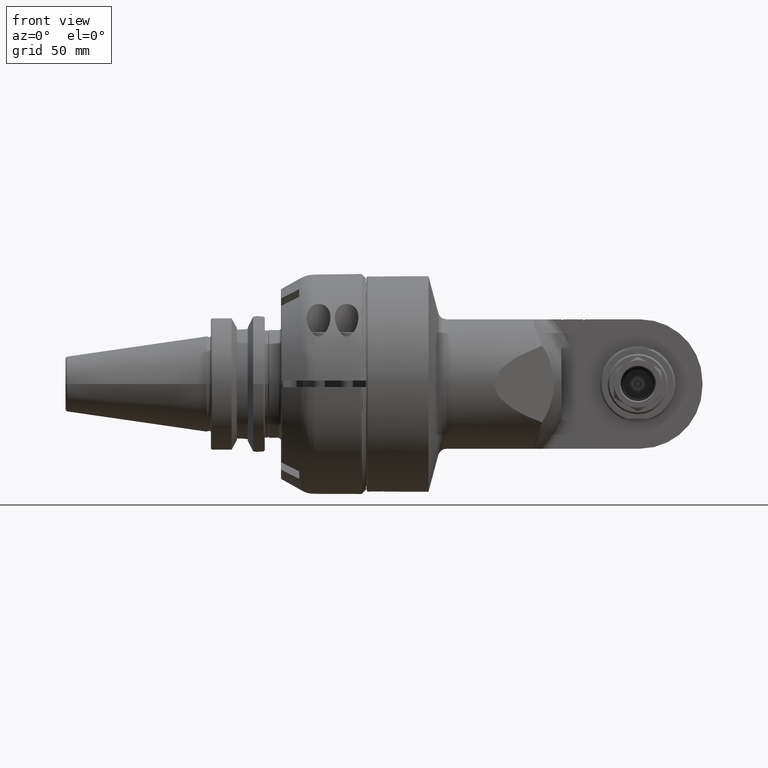
[diagram: clean part render]
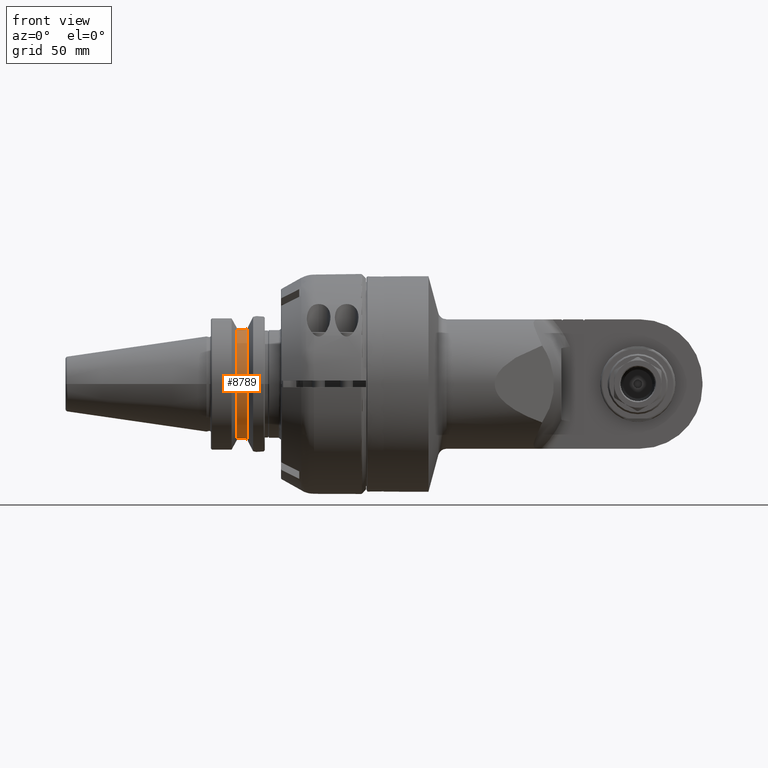
[diagram: same view with one face highlighted and labeled with its STEP entity id]
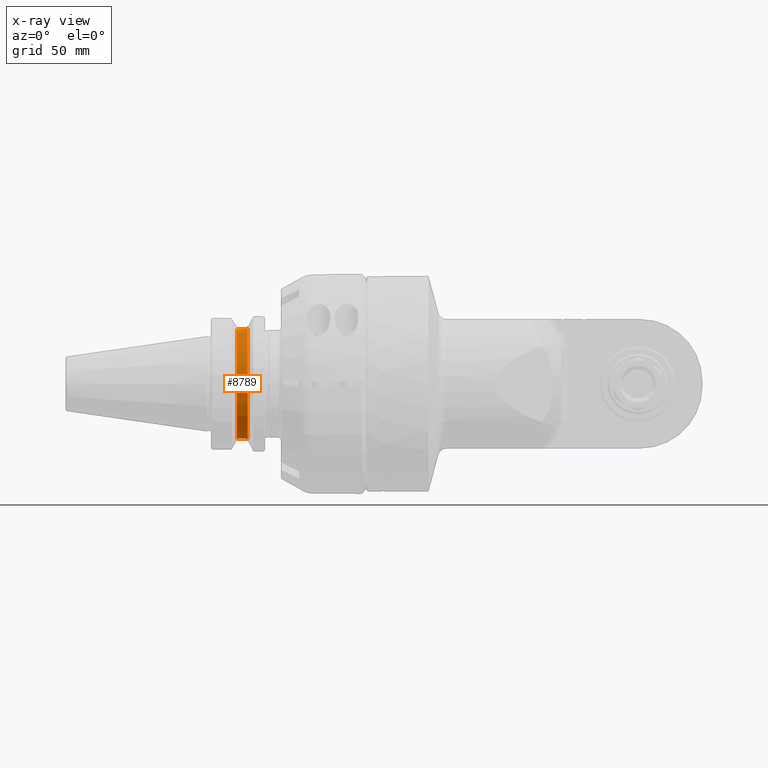
[diagram: x-ray of the same camera — body ghosted, the highlighted face saturated]
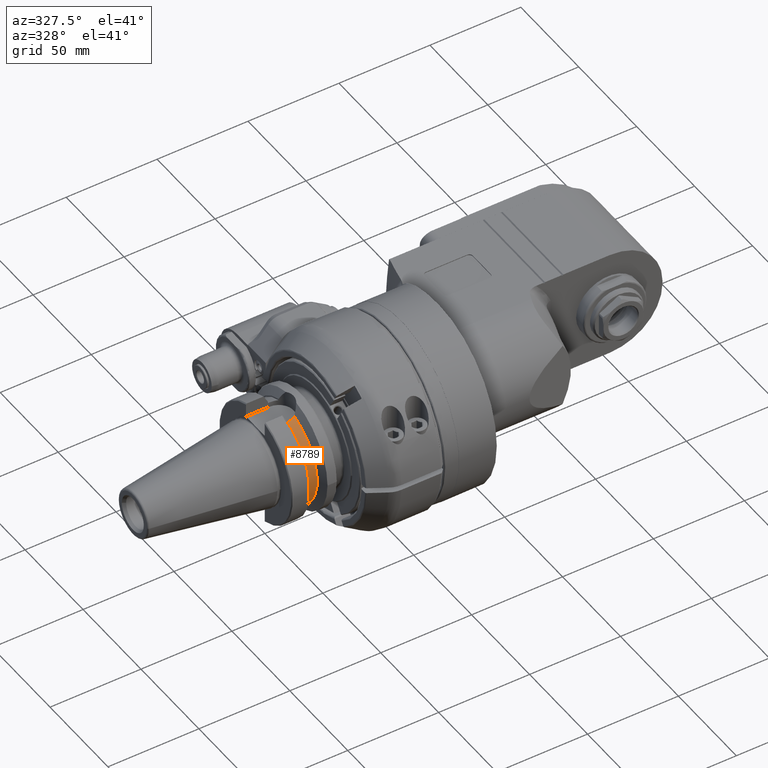
[diagram: same view with one face highlighted and labeled with its STEP entity id]
A machine part, front view. The second image highlights one B-rep face of the part: STEP entity #8789.
The next image is the same camera in x-ray: the body ghosted, the highlighted face saturated — about 0% of this face is hidden behind the body in this view.
A second angle (auxiliary view) of the same face is appended — the face is thin or edge-on in the first view.
In plain terms, the highlighted cylindrical surface (partial cylindrical patch) has radius 26.5 mm, axis along (1, 0, 0).
Its self-contained STEP definition (entity closure, byte-faithful):
#205=B_SPLINE_CURVE_WITH_KNOTS('',3,(#17281,#17282,#17283,#17284,#17285,
#17286,#17287,#17288,#17289,#17290,#17291,#17292,#17293,#17294,#17295,#17296,
#17297,#17298,#17299,#17300,#17301,#17302,#17303,#17304,#17305,#17306,#17307,
#17308,#17309,#17310,#17311,#17312,#17313,#17314,#17315,#17316,#17317,#17318,
#17319,#17320,#17321,#17322,#17323),.UNSPECIFIED.,.F.,.F.,(4,3,3,3,3,3,
3,3,3,3,3,3,3,3,4),(0.,0.0939692183446307,0.1111111111111,0.204657012970322,
0.2222222222222,0.3333333333333,0.4444444444444,0.543887019856217,0.5555555555556,
0.6666666666667,0.7777777777778,0.872034390876875,0.8888888888889,0.980332805401737,
1.),.UNSPECIFIED.);
#209=B_SPLINE_CURVE_WITH_KNOTS('',3,(#17361,#17362,#17363,#17364,#17365,
#17366,#17367,#17368,#17369,#17370,#17371,#17372,#17373,#17374,#17375,#17376,
#17377,#17378,#17379,#17380,#17381,#17382,#17383,#17384,#17385,#17386,#17387,
#17388,#17389,#17390,#17391,#17392,#17393,#17394,#17395,#17396,#17397),
 .UNSPECIFIED.,.F.,.F.,(4,3,3,3,3,3,3,3,3,3,3,3,4),(0.,0.1111111111111,
0.211792966589819,0.2222222222222,0.3333333333333,0.4444444444444,0.543576379659597,
0.5555555555556,0.6666666666667,0.7777777777778,0.880078436823261,0.8888888888889,
1.),.UNSPECIFIED.);
#817=LINE('',#17399,#1408);
#818=LINE('',#17402,#1409);
#1408=VECTOR('',#12181,0.85);
#1409=VECTOR('',#12184,0.85);
#1627=CYLINDRICAL_SURFACE('',#9777,26.5);
#2181=FACE_OUTER_BOUND('',#2758,.T.);
#2758=EDGE_LOOP('',(#7631,#7632,#7633,#7634,#7635,#7636));
#3280=CIRCLE('',#9776,26.5);
#3281=CIRCLE('',#9778,26.5);
#4062=VERTEX_POINT('',#17278);
#4063=VERTEX_POINT('',#17280);
#4069=VERTEX_POINT('',#17356);
#4070=VERTEX_POINT('',#17360);
#4071=VERTEX_POINT('',#17398);
#4072=VERTEX_POINT('',#17400);
#5276=EDGE_CURVE('',#4063,#4062,#205,.T.);
#5285=EDGE_CURVE('',#4069,#4062,#3280,.T.);
#5286=EDGE_CURVE('',#4070,#4069,#209,.T.);
#5287=EDGE_CURVE('',#4070,#4071,#817,.T.);
#5288=EDGE_CURVE('',#4072,#4071,#3281,.T.);
#5289=EDGE_CURVE('',#4072,#4063,#818,.T.);
#7631=ORIENTED_EDGE('',*,*,#5276,.T.);
#7632=ORIENTED_EDGE('',*,*,#5285,.F.);
#7633=ORIENTED_EDGE('',*,*,#5286,.F.);
#7634=ORIENTED_EDGE('',*,*,#5287,.T.);
#7635=ORIENTED_EDGE('',*,*,#5288,.F.);
#7636=ORIENTED_EDGE('',*,*,#5289,.T.);
#8789=ADVANCED_FACE('',(#2181),#1627,.T.);
#9776=AXIS2_PLACEMENT_3D('',#17358,#12177,#12178);
#9777=AXIS2_PLACEMENT_3D('',#17359,#12179,#12180);
#9778=AXIS2_PLACEMENT_3D('',#17401,#12182,#12183);
#12177=DIRECTION('center_axis',(1.,0.,0.));
#12178=DIRECTION('ref_axis',(0.,-0.26029531110911,0.965529052392838));
#12179=DIRECTION('center_axis',(1.,0.,0.));
#12180=DIRECTION('ref_axis',(0.,-1.,-1.22464679914735E-16));
#12181=DIRECTION('',(-1.,0.,0.));
#12182=DIRECTION('center_axis',(-1.,0.,0.));
#12183=DIRECTION('ref_axis',(0.,-0.303773584916708,-0.952744251678724));
#12184=DIRECTION('',(1.,2.292775120088E-10,-1.096283848015E-10));
#17278=CARTESIAN_POINT('',(-180.9,-6.897825744392,-25.58651988841));
#17280=CARTESIAN_POINT('',(-185.05,-8.05,-25.24772266958));
#17281=CARTESIAN_POINT('Ctrl Pts',(-185.05,-8.05000000000001,-25.24772266958));
#17282=CARTESIAN_POINT('Ctrl Pts',(-184.915351686759,-8.05000000000001,
-25.24772266958));
#17283=CARTESIAN_POINT('Ctrl Pts',(-184.780768211916,-8.04662604490495,
-25.2487977124219));
#17284=CARTESIAN_POINT('Ctrl Pts',(-184.646117892593,-8.03986189205492,
-25.2509522452046));
#17285=CARTESIAN_POINT('Ctrl Pts',(-184.621554941284,-8.03862797327967,
-25.2513452757157));
#17286=CARTESIAN_POINT('Ctrl Pts',(-184.596989774174,-8.03728109885629,
-25.2517742285917));
#17287=CARTESIAN_POINT('Ctrl Pts',(-184.572421607817,-8.03582098352867,
-25.2522391308283));
#17288=CARTESIAN_POINT('Ctrl Pts',(-184.438349407607,-8.02785291331605,
-25.2547761726587));
#17289=CARTESIAN_POINT('Ctrl Pts',(-184.304187886551,-8.01650798209667,
-25.2583838044216));
#17290=CARTESIAN_POINT('Ctrl Pts',(-184.170324642157,-8.00179175340149,
-25.26304352366));
#17291=CARTESIAN_POINT('Ctrl Pts',(-184.145189004441,-7.99902847215354,
-25.2639184838865));
#17292=CARTESIAN_POINT('Ctrl Pts',(-184.120063877212,-7.99614647352718,
-25.2648305385662));
#17293=CARTESIAN_POINT('Ctrl Pts',(-184.094951813983,-7.99314599906612,
-25.265779565205));
#17294=CARTESIAN_POINT('Ctrl Pts',(-183.936102055485,-7.974166091315,-25.2717827617967));
#17295=CARTESIAN_POINT('Ctrl Pts',(-183.77777387673,-7.95044819057404,-25.2792653419533));
#17296=CARTESIAN_POINT('Ctrl Pts',(-183.620054930984,-7.92197936753164,
-25.2881838592717));
#17297=CARTESIAN_POINT('Ctrl Pts',(-183.462335985238,-7.89351054448923,
-25.29710237659));
#17298=CARTESIAN_POINT('Ctrl Pts',(-183.30522670537,-7.86029079948923,-25.30745683107));
#17299=CARTESIAN_POINT('Ctrl Pts',(-183.148828506733,-7.82227888490236,
-25.3192012719));
#17300=CARTESIAN_POINT('Ctrl Pts',(-183.008854749773,-7.78825886075668,
-25.3297123488861));
#17301=CARTESIAN_POINT('Ctrl Pts',(-182.869451967998,-7.7503941306044,-25.3413367978361));
#17302=CARTESIAN_POINT('Ctrl Pts',(-182.731015746358,-7.70874905749049,
-25.3539977801955));
#17303=CARTESIAN_POINT('Ctrl Pts',(-182.714771718208,-7.70386244810492,
-25.3554834127231));
#17304=CARTESIAN_POINT('Ctrl Pts',(-182.698540987022,-7.69892384684786,
-25.3569833168056));
#17305=CARTESIAN_POINT('Ctrl Pts',(-182.682324182231,-7.69393340378985,
-25.3584973683033));
#17306=CARTESIAN_POINT('Ctrl Pts',(-182.527903161003,-7.64641298756987,
-25.3729145966967));
#17307=CARTESIAN_POINT('Ctrl Pts',(-182.374743396916,-7.59419372503564,
-25.3886146263033));
#17308=CARTESIAN_POINT('Ctrl Pts',(-182.222968652134,-7.5372669952832,-25.4055034636533));
#17309=CARTESIAN_POINT('Ctrl Pts',(-182.071193907353,-7.48034026553075,
-25.4223923010033));
#17310=CARTESIAN_POINT('Ctrl Pts',(-181.920804094575,-7.41870756441855,
-25.4404699460967));
#17311=CARTESIAN_POINT('Ctrl Pts',(-181.771875463767,-7.35230572847355,
-25.459646511195));
#17312=CARTESIAN_POINT('Ctrl Pts',(-181.645537888766,-7.29597641903592,
-25.4759141738884));
#17313=CARTESIAN_POINT('Ctrl Pts',(-181.520254551869,-7.23620871438504,
-25.492972651328));
#17314=CARTESIAN_POINT('Ctrl Pts',(-181.396400487846,-7.1731241871857,-25.5107098238129));
#17315=CARTESIAN_POINT('Ctrl Pts',(-181.374253521101,-7.16184372628952,
-25.5138814966383));
#17316=CARTESIAN_POINT('Ctrl Pts',(-181.352152208712,-7.15045733686851,
-25.5170748706095));
#17317=CARTESIAN_POINT('Ctrl Pts',(-181.330098631124,-7.1389658779009,-25.5202893046733));
#17318=CARTESIAN_POINT('Ctrl Pts',(-181.210447158484,-7.07661907803206,
-25.5377291857047));
#17319=CARTESIAN_POINT('Ctrl Pts',(-181.092198288706,-7.01118314289052,
-25.5557889904813));
#17320=CARTESIAN_POINT('Ctrl Pts',(-180.975265366928,-6.94255267679298,
-25.574419987946));
#17321=CARTESIAN_POINT('Ctrl Pts',(-180.950116153998,-6.92779205866132,
-25.5784270281808));
#17322=CARTESIAN_POINT('Ctrl Pts',(-180.92502792283,-6.91288351528872,-25.5824604899377));
#17323=CARTESIAN_POINT('Ctrl Pts',(-180.9,-6.89782574439215,-25.58651988841));
#17356=CARTESIAN_POINT('',(-180.9,-6.897825744392,25.58651988841));
#17358=CARTESIAN_POINT('Origin',(-180.9,-1.219023881574E-14,0.));
#17359=CARTESIAN_POINT('Origin',(-183.4,-1.274535032806E-14,0.));
#17360=CARTESIAN_POINT('',(-185.05,-8.05,25.24772266958));
#17361=CARTESIAN_POINT('Ctrl Pts',(-185.05,-8.05000000000001,25.24772266958));
#17362=CARTESIAN_POINT('Ctrl Pts',(-184.8909778301,-8.05000000000001,25.24772266958));
#17363=CARTESIAN_POINT('Ctrl Pts',(-184.731719068313,-8.04528822090778,
25.2492257068));
#17364=CARTESIAN_POINT('Ctrl Pts',(-184.572421609542,-8.0358209836312,25.2522391308));
#17365=CARTESIAN_POINT('Ctrl Pts',(-184.428076336042,-8.02724237249382,
25.254969704877));
#17366=CARTESIAN_POINT('Ctrl Pts',(-184.283699447813,-8.01475454613751,
25.2589404329466));
#17367=CARTESIAN_POINT('Ctrl Pts',(-184.139691307462,-7.99836471313292,
25.2641282517614));
#17368=CARTESIAN_POINT('Ctrl Pts',(-184.124774044548,-7.99666695182961,
25.2646656384468));
#17369=CARTESIAN_POINT('Ctrl Pts',(-184.109860736455,-7.99492736765064,
25.2652160846506));
#17370=CARTESIAN_POINT('Ctrl Pts',(-184.094951826366,-7.99314600054566,
25.2657795647383));
#17371=CARTESIAN_POINT('Ctrl Pts',(-183.936115412364,-7.97416768748979,
25.2717827638967));
#17372=CARTESIAN_POINT('Ctrl Pts',(-183.777777340862,-7.9504488154193,25.2792653514333));
#17373=CARTESIAN_POINT('Ctrl Pts',(-183.620054952517,-7.92197937141843,
25.2881838580533));
#17374=CARTESIAN_POINT('Ctrl Pts',(-183.462332564172,-7.89350992741756,
25.2971023646733));
#17375=CARTESIAN_POINT('Ctrl Pts',(-183.305226080256,-7.86029064656649,
25.3074567903767));
#17376=CARTESIAN_POINT('Ctrl Pts',(-183.148828553551,-7.82227889628118,
25.3192012683817));
#17377=CARTESIAN_POINT('Ctrl Pts',(-183.009292648184,-7.78836529098088,
25.3296795438762));
#17378=CARTESIAN_POINT('Ctrl Pts',(-182.870322520564,-7.75063057085185,
25.3412642987606));
#17379=CARTESIAN_POINT('Ctrl Pts',(-182.732313008986,-7.70913918746357,
25.353879191984));
#17380=CARTESIAN_POINT('Ctrl Pts',(-182.715635838195,-7.70412533820604,
25.3554035849508));
#17381=CARTESIAN_POINT('Ctrl Pts',(-182.698972682907,-7.69905669372854,
25.3569430204954));
#17382=CARTESIAN_POINT('Ctrl Pts',(-182.682324229203,-7.69393341824455,
25.3584973639083));
#17383=CARTESIAN_POINT('Ctrl Pts',(-182.527903908019,-7.64641321848315,
25.3729144511233));
#17384=CARTESIAN_POINT('Ctrl Pts',(-182.374746862061,-7.59419502425406,
25.3886140952467));
#17385=CARTESIAN_POINT('Ctrl Pts',(-182.222968672452,-7.53726700290393,
25.4055034613917));
#17386=CARTESIAN_POINT('Ctrl Pts',(-182.071190482843,-7.4803389815538,25.4223928275367));
#17387=CARTESIAN_POINT('Ctrl Pts',(-181.920791265119,-7.41870184402279,
25.4404719157033));
#17388=CARTESIAN_POINT('Ctrl Pts',(-181.771875472415,-7.35230573232962,
25.4596465100833));
#17389=CARTESIAN_POINT('Ctrl Pts',(-181.634767818793,-7.29117443847121,
25.4773006728614));
#17390=CARTESIAN_POINT('Ctrl Pts',(-181.49892042561,-7.22600268921361,25.4958834956124));
#17391=CARTESIAN_POINT('Ctrl Pts',(-181.364731746168,-7.15690560908132,
25.5152642420476));
#17392=CARTESIAN_POINT('Ctrl Pts',(-181.353174998255,-7.15095475286923,
25.5169333724232));
#17393=CARTESIAN_POINT('Ctrl Pts',(-181.341630543558,-7.14497481219011,
25.5186084211521));
#17394=CARTESIAN_POINT('Ctrl Pts',(-181.330098630808,-7.13896587773618,
25.5202893047208));
#17395=CARTESIAN_POINT('Ctrl Pts',(-181.184666406747,-7.0631855002032,25.541487404385));
#17396=CARTESIAN_POINT('Ctrl Pts',(-181.0412276344,-6.98279377699815,25.56361350312));
#17397=CARTESIAN_POINT('Ctrl Pts',(-180.9,-6.89782574439215,25.58651988841));
#17398=CARTESIAN_POINT('',(-185.9,-8.05,25.24772266958));
#17399=CARTESIAN_POINT('',(-185.05,-8.05,25.24772266958));
#17400=CARTESIAN_POINT('',(-185.9,-8.050000000195,-25.24772266949));
#17401=CARTESIAN_POINT('Origin',(-185.9,-1.330046184037E-14,0.));
#17402=CARTESIAN_POINT('',(-185.9,-8.050000000195,-25.24772266949));